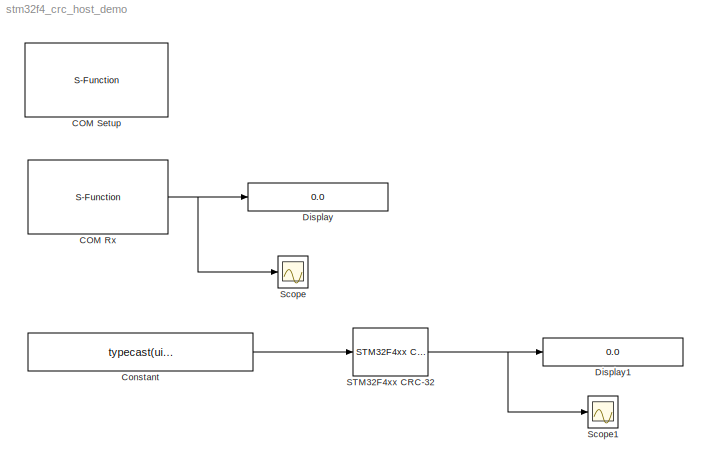
MODEL stm32f4_crc_host_demo
KIND model
BLOCK [S-Function] COM Rx
  EnableBusSupport = off
  FunctionName = amg_usbconverter_n_uart
  MaskCallbackString = amg_usbconverter_n_uart_callback('id');|amg_usbconverter_n_uart_callback('port');||||||amg_usbconverter_n_uart_callback('packetmode');|amg_usbconverter_n_uart_callback('bin_header');||amg_usbconverter_n_uart_callback('d1datatype');|amg_usbconverter_n_uart_callback('d2datatype');|amg_usbconverter_n_uart_callback('d3datatype');|amg_usbconverter_n_uart_callback('d4datatype');|amg_usbconverter_n_uart_...<+814ch>
  MaskDisplay = text(0.05, 0.5, '[COM12]\\nPacket: Binary\\nTs (sec): 0.01','ver','middle','hor','left')port_label('output', 1,'uint32')
  MaskEnableString = off,on,on,on,on,on,on,on,on,on,on,on,on,on,on,on,on,on,on,on,on,on,on,on,on,on,on,on,on,on,on,on,on,on,on,on,on,on,on,off,off
  MaskHelp = web(fullfile(waijungdocroot,'amg_usbconverter_n_uart.htm'), '-browser')
  MaskIconFrame = on
  MaskIconOpaque = on
  MaskIconRotate = none
  MaskIconUnits = normalized
  MaskInitialization = amg_usbconverter_n_uart_callback('init');
  MaskPortRotate = default
  MaskPromptString = id|Port|Baud Rate|Data Bits|Parity|Stop Bits|Timeout (mS)|Packet mode|Header (example: '7E 7E')|Data length (bytes)|D1 Data Type|D2 Data Type|D3 Data Type|D4 Data Type|D5 Data Type|D6 Data Type|D7 Data Type|D8 Data Type|D9 Data Type|D10 Data Type|D11 Data Type|D12 Data Type|D13 Data Type|D14 Data Type|D15 Data Type|D16 Data Type|Terminator (example: '03 03')|Format|End of packet|Ascii print format...<+199ch>
  MaskSelfModifiable = on
  MaskStyleString = popup(setup|tx|rx),popup(COM12|COM13),edit,edit,popup(None|Odd|Even),popup(1|1.5|2),edit,popup(Binary|Ascii),edit,edit,popup(double|single|uint32|int32|uint16|int16|uint8|int8),popup(not used|double|single|uint32|int32|uint16|int16|uint8|int8),popup(not used|double|single|uint32|int32|uint16|int16|uint8|int8),popup(not used|double|single|uint32|int32|uint16|int16|uint8|int8),popup(not used|double|...<+933ch>
  MaskTabNameString = ,,,,,,,,,,,,,,,,,,,,,,,,,,,,,,,,,,,,,,,,
  MaskToolTipString = on,on,on,on,on,on,on,on,on,on,on,on,on,on,on,on,on,on,on,on,on,on,on,on,on,on,on,on,on,on,on,on,on,on,on,on,on,on,on,on,on
  MaskTunableValueString = off,off,off,off,off,off,off,off,off,off,off,off,off,off,off,off,off,off,off,off,off,off,off,off,off,off,off,off,off,off,off,off,off,off,off,off,off,off,off,off,off
  MaskType = amg_usbconverter_n_uart
  MaskValueString = rx|COM12|115200|8|Odd|1|10000|Binary|'7E 7E'|4|uint32|not used|not used|not used|not used|not used|not used|not used|not used|not used|not used|not used|not used|not used|not used|not used|'03 03'|'Value=%d'|LF (0x0A - \"\\n\")|Value=%d\n|[ \"\",\"int32_t\"]|1|[126  126]|2|[3  3]|2|[7  0  1  1  0  0  0  1  0  0  0  1  0  0  0  0]|1|0.01|0.01|COMRx
  MaskVarAliasString = ,,,,,,,,,,,,,,,,,,,,,,,,,,,,,,,,,,,,,,,,
  MaskVariables = id=&1;port=&2;setup_baudrate=@3;setup_databits=@4;setup_parity=&5;setup_stopbits=&6;setup_timeout=@7;packetmode=&8;bin_header=&9;bin_datalength=@10;d1datatype=&11;d2datatype=&12;d3datatype=&13;d4datatype=&14;d5datatype=&15;d6datatype=&16;d7datatype=&17;d8datatype=&18;d9datatype=&19;d10datatype=&20;d11datatype=&21;d12datatype=&22;d13datatype=&23;d14datatype=&24;d15datatype=&25;d16datatype=&26;bin_t...<+302ch>
  MaskVisibilityString = off,on,off,off,off,off,off,on,on,off,on,on,off,off,off,off,off,off,off,off,off,off,off,off,off,off,on,off,off,off,off,off,off,off,off,off,off,off,on,off,off
  Parameters = id,port,setup_baudrate,setup_databits,setup_parity,setup_stopbits,setup_timeout,packetmode,ascii_printf_format,ascii_typecastarray,ascii_typecastcount,bin_headerarray,bin_headercount,bin_terminatorarray,bin_terminatorcount,bin_datatypearray,bin_datatypecount,sampletime,sampletimestr,blockid
  Ports = [0, 1]
BLOCK [S-Function] COM Setup
  EnableBusSupport = off
  FunctionName = amg_usbconverter_n_uart
  MaskCallbackString = amg_usbconverter_n_uart_callback('id');|amg_usbconverter_n_uart_callback('port');||||||amg_usbconverter_n_uart_callback('packetmode');|amg_usbconverter_n_uart_callback('bin_header');||amg_usbconverter_n_uart_callback('d1datatype');|amg_usbconverter_n_uart_callback('d2datatype');|amg_usbconverter_n_uart_callback('d3datatype');|amg_usbconverter_n_uart_callback('d4datatype');|amg_usbconverter_n_uart_...<+814ch>
  MaskDisplay = text(0.5, 0.5, '[COM12]\\nBaud: 115200\\nFrame: 8-None-1\\nTs (sec): 0.01','ver','middle','hor','center')
  MaskEnableString = off,on,on,off,off,on,on,on,on,on,on,on,on,on,on,on,on,on,on,on,on,on,on,on,on,on,on,on,on,on,on,on,on,on,on,on,on,on,on,off,off
  MaskHelp = web(fullfile(waijungdocroot,'amg_usbconverter_n_uart.htm'), '-browser')
  MaskIconFrame = on
  MaskIconOpaque = on
  MaskIconRotate = none
  MaskIconUnits = normalized
  MaskInitialization = amg_usbconverter_n_uart_callback('init');
  MaskPortRotate = default
  MaskPromptString = id|Port|Baud Rate|Data Bits|Parity|Stop Bits|Timeout (mS)|Packet mode|Header (example: '7E 7E')|Data length (bytes)|D1 Data Type|D2 Data Type|D3 Data Type|D4 Data Type|D5 Data Type|D6 Data Type|D7 Data Type|D8 Data Type|D9 Data Type|D10 Data Type|D11 Data Type|D12 Data Type|D13 Data Type|D14 Data Type|D15 Data Type|D16 Data Type|Terminator (example: '03 03')|Format|End of packet|Ascii print format...<+199ch>
  MaskSelfModifiable = on
  MaskStyleString = popup(setup|tx|rx),popup(COM12|COM13),edit,edit,popup(None|Odd|Even),popup(1|1.5|2),edit,popup(Binary|Ascii),edit,edit,popup(double|single|uint32|int32|uint16|int16|uint8|int8),popup(not used|double|single|uint32|int32|uint16|int16|uint8|int8),popup(not used|double|single|uint32|int32|uint16|int16|uint8|int8),popup(not used|double|single|uint32|int32|uint16|int16|uint8|int8),popup(not used|double|...<+933ch>
  MaskTabNameString = ,,,,,,,,,,,,,,,,,,,,,,,,,,,,,,,,,,,,,,,,
  MaskToolTipString = on,on,on,on,on,on,on,on,on,on,on,on,on,on,on,on,on,on,on,on,on,on,on,on,on,on,on,on,on,on,on,on,on,on,on,on,on,on,on,on,on
  MaskTunableValueString = off,off,off,off,off,off,off,off,off,off,off,off,off,off,off,off,off,off,off,off,off,off,off,off,off,off,off,off,off,off,off,off,off,off,off,off,off,off,off,off,off
  MaskType = amg_usbconverter_n_uart
  MaskValueString = setup|COM12|115200|8|None|1|1000|Binary|'7E 7E'|12|uint32|double|not used|not used|not used|not used|not used|not used|not used|not used|not used|not used|not used|not used|not used|not used|'03 03'|'Value=%d'|LF (0x0A - \"\\n\")|Value=%d\n|[ \"\",\"int32_t\"]|1|[126  126]|2|[3  3]|2|[7  0  1  1  0  0  0  1  0  0  0  1  0  0  0  0]|2|inf|0.01|COMSetup
  MaskVarAliasString = ,,,,,,,,,,,,,,,,,,,,,,,,,,,,,,,,,,,,,,,,
  MaskVariables = id=&1;port=&2;setup_baudrate=@3;setup_databits=@4;setup_parity=&5;setup_stopbits=&6;setup_timeout=@7;packetmode=&8;bin_header=&9;bin_datalength=@10;d1datatype=&11;d2datatype=&12;d3datatype=&13;d4datatype=&14;d5datatype=&15;d6datatype=&16;d7datatype=&17;d8datatype=&18;d9datatype=&19;d10datatype=&20;d11datatype=&21;d12datatype=&22;d13datatype=&23;d14datatype=&24;d15datatype=&25;d16datatype=&26;bin_t...<+302ch>
  MaskVisibilityString = off,on,on,on,on,on,on,off,off,off,off,off,off,off,off,off,off,off,off,off,off,off,off,off,off,off,off,off,off,off,off,off,off,off,off,off,off,off,off,off,off
  Parameters = id,port,setup_baudrate,setup_databits,setup_parity,setup_stopbits,setup_timeout,packetmode,ascii_printf_format,ascii_typecastarray,ascii_typecastcount,bin_headerarray,bin_headercount,bin_terminatorarray,bin_terminatorcount,bin_datatypearray,bin_datatypecount,sampletime,sampletimestr,blockid
  Ports = []
BLOCK [Constant] Constant
  OutDataType = fixdt(1, 16)
  OutScaling = 2^0
  SampleTime = 0.01
  Value = typecast(uint8('12345x789123abcd'), 'uint32')
BLOCK [Display] Display
  Decimation = 1
  Format = hex (Stored Integer)
  Lockdown = off
  Ports = [1]
BLOCK [Display] Display1
  Decimation = 1
  Format = hex (Stored Integer)
  Lockdown = off
  Ports = [1]
BLOCK [Reference] STM32F4xx CRC-32  REF=stm32f4_crc_lib/STM32F4xx CRC-32
  Ports = [1, 1]
  SourceBlock = stm32f4_crc_lib/STM32F4xx CRC-32
  SourceType = stm32f4_crc32
  blockid = STM32F4xxCRC32
  crcinit = 0xFFFFFFFF
  crcinitdec = 4294967295
  crcxor = 0x00000000
  crcxordec = 0
  direct = on
  mode = STM32F4xx CRC-32
  poly = 0x4C11DB7
  polydec = 79764919
  refin = off
  refout = off
  sampletime = -1
  sampletimestr = 0.01
BLOCK [Scope] Scope
  DataFormat = StructureWithTime
  Floating = off
  NumInputPorts = 1
  Ports = [1]
  SampleTime = 0
  YMax = 3.73757e+009
  YMin = 3.73757e+009
BLOCK [Scope] Scope1
  DataFormat = StructureWithTime
  Floating = off
  NumInputPorts = 1
  Ports = [1]
  SampleTime = 0
  SaveName = ScopeData1
  YMax = 3.92445e+009
  YMin = 3.55069e+009
NET COM Rx:1 -> Display:1, Scope:1
LINE Constant:1 -> STM32F4xx CRC-32:1
NET STM32F4xx CRC-32:1 -> Display1:1, Scope1:1
note: NET lines group one-source signal fan-out (src -> all destinations, sorted); 1:1 wires keep LINE
